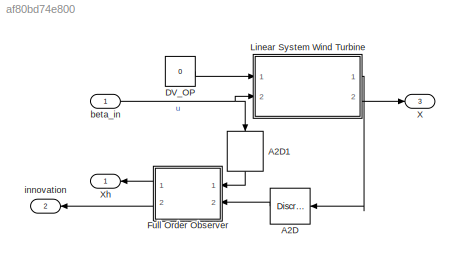
MODEL slx_af80bd74e800
KIND model
CONFIG AbsTol = auto
CONFIG EnableMultiTasking = off
CONFIG FixedStep = STEP_SIZE
CONFIG MaxStep = auto
CONFIG MinStep = auto
CONFIG RelTol = 1e-3
CONFIG SampleTimeConstraint = Unconstrained
CONFIG Solver = ode4
CONFIG SolverName = ode4
CONFIG StartTime = 0.0
CONFIG StopTime = TIME_SIM
BLOCK [DiscreteTransferFcn] A2D
  Denominator = [1]
  InputPortMap = u0
  Ports = [1, 1]
  SampleTime = Ts
BLOCK [DiscreteTransferFcn] A2D1
  Denominator = [1]
  InputPortMap = u0
  Ports = [1, 1]
  SampleTime = Ts
BLOCK [Constant] DV_OP
  Value = 0
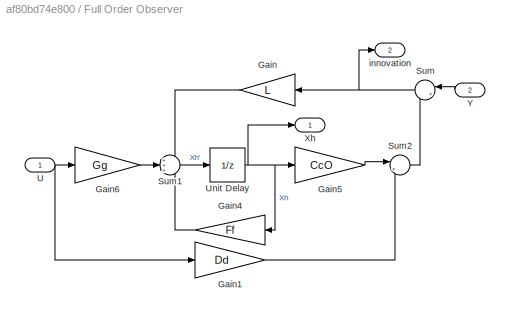
BLOCK [SubSystem] Full Order Observer
  Ports = [2, 2]
  RequestExecContextInheritance = off
BLOCK [Gain] Full Order Observer/Gain
  Gain = L
  Multiplication = Matrix(K*u) (u vector)
  OutDataTypeStr = Inherit: Inherit via internal rule
  ParamDataTypeStr = Inherit: Inherit via internal rule
  SaturateOnIntegerOverflow = off
BLOCK [Gain] Full Order Observer/Gain1
  Gain = Dd
  Multiplication = Matrix(K*u) (u vector)
  OutDataTypeStr = Inherit: Inherit via internal rule
  ParamDataTypeStr = Inherit: Inherit via internal rule
  SaturateOnIntegerOverflow = off
BLOCK [Gain] Full Order Observer/Gain4
  Gain = Ff
  Multiplication = Matrix(K*u) (u vector)
  OutDataTypeStr = Inherit: Inherit via internal rule
  ParamDataTypeStr = Inherit: Inherit via internal rule
  SaturateOnIntegerOverflow = off
BLOCK [Gain] Full Order Observer/Gain5
  Gain = CcO
  Multiplication = Matrix(K*u) (u vector)
  OutDataTypeStr = Inherit: Inherit via internal rule
  ParamDataTypeStr = Inherit: Inherit via internal rule
  SaturateOnIntegerOverflow = off
BLOCK [Gain] Full Order Observer/Gain6
  Gain = Gg
  Multiplication = Matrix(K*u) (u vector)
  OutDataTypeStr = Inherit: Inherit via internal rule
  ParamDataTypeStr = Inherit: Inherit via internal rule
  SaturateOnIntegerOverflow = off
BLOCK [Sum] Full Order Observer/Sum
  IconShape = round
  InputSameDT = off
  Inputs = |+-
  OutDataTypeStr = Inherit: Inherit via internal rule
  Ports = [2, 1]
  SaturateOnIntegerOverflow = off
BLOCK [Sum] Full Order Observer/Sum1
  IconShape = round
  InputSameDT = off
  Inputs = +++
  OutDataTypeStr = Inherit: Inherit via internal rule
  Ports = [3, 1]
  SaturateOnIntegerOverflow = off
BLOCK [Sum] Full Order Observer/Sum2
  IconShape = round
  InputSameDT = off
  Inputs = |++
  OutDataTypeStr = Inherit: Inherit via internal rule
  Ports = [2, 1]
  SaturateOnIntegerOverflow = off
BLOCK [Inport] Full Order Observer/U
  IconDisplay = Port number
BLOCK [UnitDelay] Full Order Observer/Unit Delay
  HasFrameUpgradeWarning = on
  SampleTime = Ts
BLOCK [Outport] Full Order Observer/Xh
  IconDisplay = Port number
BLOCK [Inport] Full Order Observer/Y
  IconDisplay = Port number
  Port = 2
BLOCK [Outport] Full Order Observer/innovation
  IconDisplay = Port number
  Port = 2
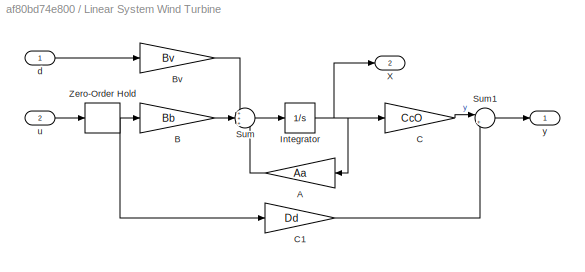
BLOCK [SubSystem] Linear System Wind Turbine
  Ports = [2, 2]
  RequestExecContextInheritance = off
BLOCK [Gain] Linear System Wind Turbine/A
  Gain = Aa
  Multiplication = Matrix(K*u) (u vector)
  OutDataTypeStr = Inherit: Inherit via internal rule
  ParamDataTypeStr = Inherit: Inherit via internal rule
  SaturateOnIntegerOverflow = off
BLOCK [Gain] Linear System Wind Turbine/B
  Gain = Bb
  Multiplication = Matrix(K*u) (u vector)
  OutDataTypeStr = Inherit: Inherit via internal rule
  ParamDataTypeStr = Inherit: Inherit via internal rule
  SaturateOnIntegerOverflow = off
BLOCK [Gain] Linear System Wind Turbine/Bv
  Gain = Bv
  Multiplication = Matrix(K*u) (u vector)
  OutDataTypeStr = Inherit: Inherit via internal rule
  ParamDataTypeStr = Inherit: Inherit via internal rule
  SaturateOnIntegerOverflow = off
BLOCK [Gain] Linear System Wind Turbine/C
  Gain = CcO
  Multiplication = Matrix(K*u) (u vector)
  OutDataTypeStr = Inherit: Inherit via internal rule
  ParamDataTypeStr = Inherit: Inherit via internal rule
  SaturateOnIntegerOverflow = off
BLOCK [Gain] Linear System Wind Turbine/C1
  Gain = Dd
  Multiplication = Matrix(K*u) (u vector)
  OutDataTypeStr = Inherit: Inherit via internal rule
  ParamDataTypeStr = Inherit: Inherit via internal rule
  SaturateOnIntegerOverflow = off
BLOCK [Integrator] Linear System Wind Turbine/Integrator
  Ports = [1, 1]
BLOCK [Sum] Linear System Wind Turbine/Sum
  IconShape = round
  InputSameDT = off
  Inputs = +++
  OutDataTypeStr = Inherit: Inherit via internal rule
  Ports = [3, 1]
  SaturateOnIntegerOverflow = off
BLOCK [Sum] Linear System Wind Turbine/Sum1
  IconShape = round
  InputSameDT = off
  Inputs = |++
  OutDataTypeStr = Inherit: Inherit via internal rule
  Ports = [2, 1]
  SaturateOnIntegerOverflow = off
BLOCK [Outport] Linear System Wind Turbine/X
  IconDisplay = Port number
  Port = 2
BLOCK [ZeroOrderHold] Linear System Wind Turbine/Zero-Order Hold
  SampleTime = Ts
BLOCK [Inport] Linear System Wind Turbine/d
  IconDisplay = Port number
BLOCK [Inport] Linear System Wind Turbine/u
  IconDisplay = Port number
  Port = 2
BLOCK [Outport] Linear System Wind Turbine/y
  IconDisplay = Port number
BLOCK [Outport] X
  IconDisplay = Port number
  Port = 3
BLOCK [Outport] Xh
  IconDisplay = Port number
BLOCK [Inport] beta_in
  IconDisplay = Port number
BLOCK [Outport] innovation
  IconDisplay = Port number
  Port = 2
LINE A2D1:1 -> Full Order Observer:1
LINE A2D:1 -> Full Order Observer:2
LINE DV_OP:1 -> Linear System Wind Turbine:1
LINE Full Order Observer/Gain1:1 -> Full Order Observer/Sum2:2
LINE Full Order Observer/Gain4:1 -> Full Order Observer/Sum1:3
LINE Full Order Observer/Gain5:1 -> Full Order Observer/Sum2:1
LINE Full Order Observer/Gain6:1 -> Full Order Observer/Sum1:2
LINE Full Order Observer/Gain:1 -> Full Order Observer/Sum1:1
LINE Full Order Observer/Sum1:1 -> Full Order Observer/Unit Delay:1
LINE Full Order Observer/Sum2:1 -> Full Order Observer/Sum:2
NET Full Order Observer/Sum:1 -> Full Order Observer/Gain:1, Full Order Observer/innovation:1
NET Full Order Observer/U:1 -> Full Order Observer/Gain1:1, Full Order Observer/Gain6:1
NET Full Order Observer/Unit Delay:1 -> Full Order Observer/Gain4:1, Full Order Observer/Gain5:1, Full Order Observer/Xh:1
LINE Full Order Observer/Y:1 -> Full Order Observer/Sum:1
LINE Full Order Observer:1 -> Xh:1
LINE Full Order Observer:2 -> innovation:1
LINE Linear System Wind Turbine/A:1 -> Linear System Wind Turbine/Sum:3
LINE Linear System Wind Turbine/B:1 -> Linear System Wind Turbine/Sum:2
LINE Linear System Wind Turbine/Bv:1 -> Linear System Wind Turbine/Sum:1
LINE Linear System Wind Turbine/C1:1 -> Linear System Wind Turbine/Sum1:2
LINE Linear System Wind Turbine/C:1 -> Linear System Wind Turbine/Sum1:1
NET Linear System Wind Turbine/Integrator:1 -> Linear System Wind Turbine/A:1, Linear System Wind Turbine/C:1, Linear System Wind Turbine/X:1
LINE Linear System Wind Turbine/Sum1:1 -> Linear System Wind Turbine/y:1
LINE Linear System Wind Turbine/Sum:1 -> Linear System Wind Turbine/Integrator:1
NET Linear System Wind Turbine/Zero-Order Hold:1 -> Linear System Wind Turbine/B:1, Linear System Wind Turbine/C1:1
LINE Linear System Wind Turbine/d:1 -> Linear System Wind Turbine/Bv:1
LINE Linear System Wind Turbine/u:1 -> Linear System Wind Turbine/Zero-Order Hold:1
LINE Linear System Wind Turbine:1 -> A2D:1
LINE Linear System Wind Turbine:2 -> X:1
NET beta_in:1 -> A2D1:1, Linear System Wind Turbine:2
note: NET lines group one-source signal fan-out (src -> all destinations, sorted); 1:1 wires keep LINE
